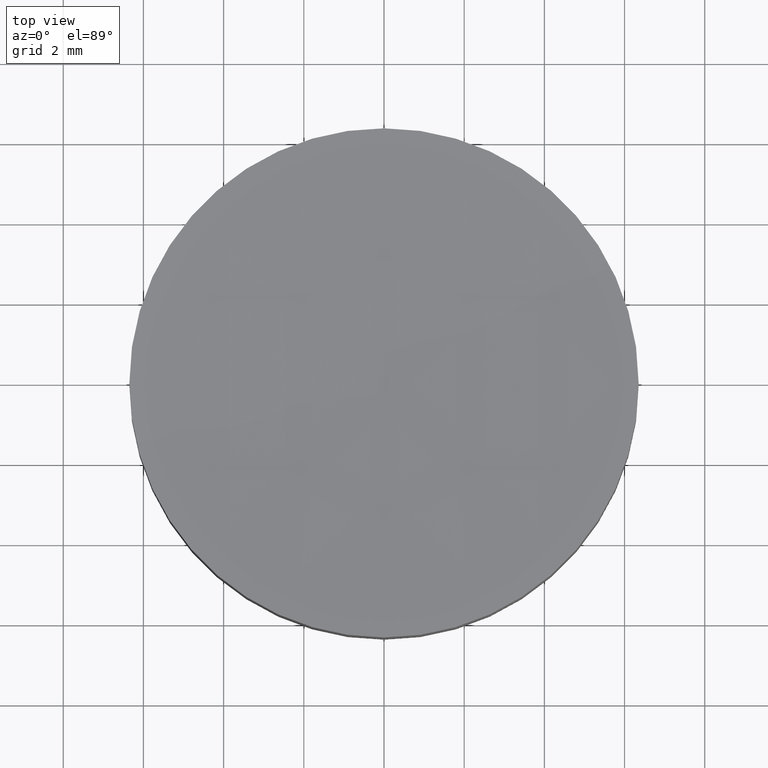
[diagram: clean part render]
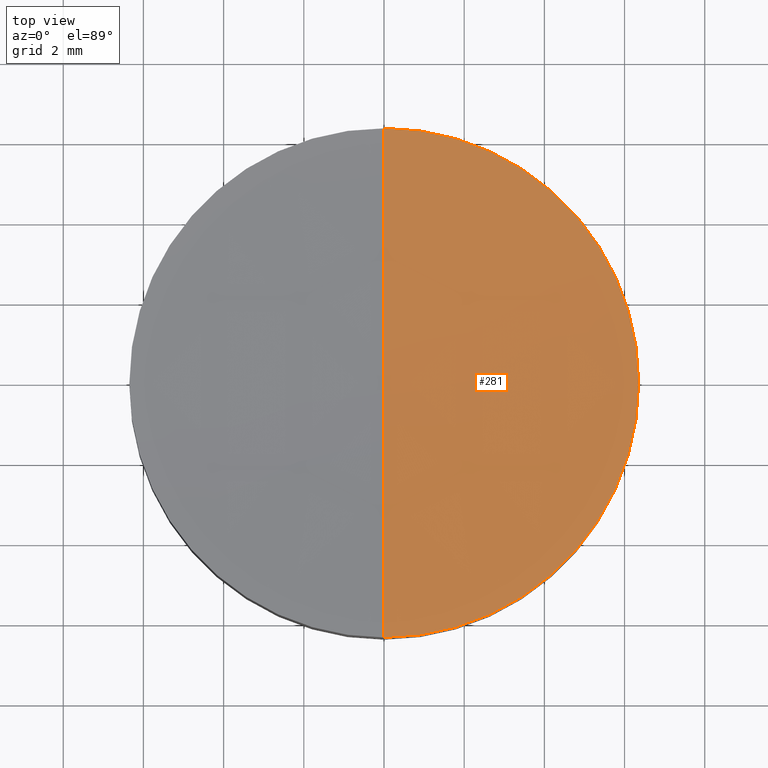
[diagram: same view with one face highlighted and labeled with its STEP entity id]
A machine part, top view. The second image highlights one B-rep face of the part: STEP entity #281.
In plain terms, the highlighted face is a freeform B-spline surface patch.
Its self-contained STEP definition (entity closure, byte-faithful):
#22 = DIRECTION ( 'NONE',  ( -0.0000000000000000000, -0.0000000000000000000, -1.000000000000000000 ) ) ;
#23 = AXIS2_PLACEMENT_3D ( 'NONE', #112, #22, #236 ) ;
#25 = CARTESIAN_POINT ( 'NONE',  ( 2.132374834590448700, -2.144756245206014300, 2.733802514649792000 ) ) ;
#26 = DIRECTION ( 'NONE',  ( 0.0000000000000000000, 1.000000000000000000, -5.327365761157181000E-016 ) ) ;
#42 = CARTESIAN_POINT ( 'NONE',  ( 6.349999999999999600, 1.221245327087670000E-015, 2.993666058263550100 ) ) ;
#45 = CARTESIAN_POINT ( 'NONE',  ( 6.765421556309547700E-014, 6.426103823646331900, 2.998340447626918900 ) ) ;
#50 = CARTESIAN_POINT ( 'NONE',  ( 2.132374834590449200, 2.144756245206003200, 2.733802514649805700 ) ) ;
#52 =( BOUNDED_SURFACE ( )  B_SPLINE_SURFACE ( 3, 3, ( 
 ( #161, #74, #136, #45 ),
 ( #210, #79, #50, #267 ),
 ( #214, #75, #25, #263 ),
 ( #242, #241, #98, #140 ) ),
 .UNSPECIFIED., .F., .F., .F. ) 
 B_SPLINE_SURFACE_WITH_KNOTS ( ( 4, 4 ),
 ( 4, 4 ),
 ( 0.0000000000000000000, 1.000000000000000000 ),
 ( 0.0000000000000000000, 1.000000000000000000 ),
 .UNSPECIFIED. ) 
 GEOMETRIC_REPRESENTATION_ITEM ( )  RATIONAL_B_SPLINE_SURFACE ( (
 ( 1.000000000000000000, 0.9996864325074911200, 0.9996864325074911200, 1.000000000000000000),
 ( 0.9987310272064817700, 0.9984178576225898300, 0.9984178576225898300, 0.9987310272064817700),
 ( 0.9987310272064817700, 0.9984178576225898300, 0.9984178576225898300, 0.9987310272064817700),
 ( 1.000000000000000000, 0.9996864325074911200, 0.9996864325074911200, 1.000000000000000000) ) ) 
 REPRESENTATION_ITEM ( '' )  SURFACE ( )  );
#57 = CIRCLE ( 'NONE', #222, 6.349999999999999600 ) ;
#74 = CARTESIAN_POINT ( 'NONE',  ( 4.252928982022157600, 6.426103823646332800, 3.063568641395216100 ) ) ;
#75 = CARTESIAN_POINT ( 'NONE',  ( 4.263746704035870700, -2.144756245206013800, 2.799196622420089500 ) ) ;
#79 = CARTESIAN_POINT ( 'NONE',  ( 4.263746704035871600, 2.144756245206003600, 2.799196622420103300 ) ) ;
#87 = CIRCLE ( 'NONE', #23, 6.349999999999999600 ) ;
#97 = DIRECTION ( 'NONE',  ( -1.000000000000000000, -1.571998891718550000E-031, -2.818484370769980100E-016 ) ) ;
#98 = CARTESIAN_POINT ( 'NONE',  ( 2.126964701252132000, -6.426103823646344400, 2.998340447626906900 ) ) ;
#99 = CARTESIAN_POINT ( 'NONE',  ( 4.352487738278875200E-014, 6.350000000000076000, 2.993666058263544400 ) ) ;
#101 = CIRCLE ( 'NONE', #252, 104.2000000000000000 ) ;
#104 = EDGE_CURVE ( 'NONE', #248, #191, #57, .T. ) ;
#112 = CARTESIAN_POINT ( 'NONE',  ( 2.498001805406600200E-016, 1.221245327087670000E-015, 2.993666058263550100 ) ) ;
#130 = DIRECTION ( 'NONE',  ( -0.0000000000000000000, -0.0000000000000000000, -1.000000000000000000 ) ) ;
#136 = CARTESIAN_POINT ( 'NONE',  ( 2.126964701252131600, 6.426103823646332800, 2.998340447626921100 ) ) ;
#140 = CARTESIAN_POINT ( 'NONE',  ( 6.765421556309547700E-014, -6.426103823646342600, 2.998340447626905100 ) ) ;
#141 = EDGE_CURVE ( 'NONE', #191, #260, #87, .T. ) ;
#146 = ORIENTED_EDGE ( 'NONE', *, *, #104, .F. ) ;
#156 = DIRECTION ( 'NONE',  ( 1.000000000000000000, 1.776356839400250500E-015, 0.0000000000000000000 ) ) ;
#161 = CARTESIAN_POINT ( 'NONE',  ( 6.375892942444089300, 6.426103823646331900, 3.193963668608329700 ) ) ;
#177 = CARTESIAN_POINT ( 'NONE',  ( 1.421085471520200100E-014, -1.421085471520200100E-014, 107.0000000000000000 ) ) ;
#191 = VERTEX_POINT ( 'NONE', #42 ) ;
#205 = EDGE_CURVE ( 'NONE', #248, #260, #101, .T. ) ;
#210 = CARTESIAN_POINT ( 'NONE',  ( 6.392110621538222400, 2.144756245206003200, 2.929923321561511300 ) ) ;
#214 = CARTESIAN_POINT ( 'NONE',  ( 6.392110621538222400, -2.144756245206013800, 2.929923321561497900 ) ) ;
#222 = AXIS2_PLACEMENT_3D ( 'NONE', #280, #130, #156 ) ;
#236 = DIRECTION ( 'NONE',  ( 1.000000000000000000, 0.0000000000000000000, 0.0000000000000000000 ) ) ;
#241 = CARTESIAN_POINT ( 'NONE',  ( 4.252928982022157600, -6.426103823646344400, 3.063568641395202400 ) ) ;
#242 = CARTESIAN_POINT ( 'NONE',  ( 6.375892942444090200, -6.426103823646342600, 3.193963668608315500 ) ) ;
#248 = VERTEX_POINT ( 'NONE', #99 ) ;
#252 = AXIS2_PLACEMENT_3D ( 'NONE', #177, #97, #26 ) ;
#256 = EDGE_LOOP ( 'NONE', ( #146, #268, #275 ) ) ;
#260 = VERTEX_POINT ( 'NONE', #262 ) ;
#262 = CARTESIAN_POINT ( 'NONE',  ( 4.352487738278875200E-014, -6.350000000000089400, 2.993666058263544400 ) ) ;
#263 = CARTESIAN_POINT ( 'NONE',  ( 6.765421556309548900E-014, -2.144756245206014300, 2.733802514649791100 ) ) ;
#267 = CARTESIAN_POINT ( 'NONE',  ( 6.852157730108389300E-014, 2.144756245206002700, 2.733802514649804800 ) ) ;
#268 = ORIENTED_EDGE ( 'NONE', *, *, #205, .T. ) ;
#275 = ORIENTED_EDGE ( 'NONE', *, *, #141, .F. ) ;
#280 = CARTESIAN_POINT ( 'NONE',  ( 2.498001805406600200E-016, 1.221245327087670000E-015, 2.993666058263550100 ) ) ;
#281 = ADVANCED_FACE ( 'NONE', ( #288 ), #52, .F. ) ;
#288 = FACE_OUTER_BOUND ( 'NONE', #256, .T. ) ;